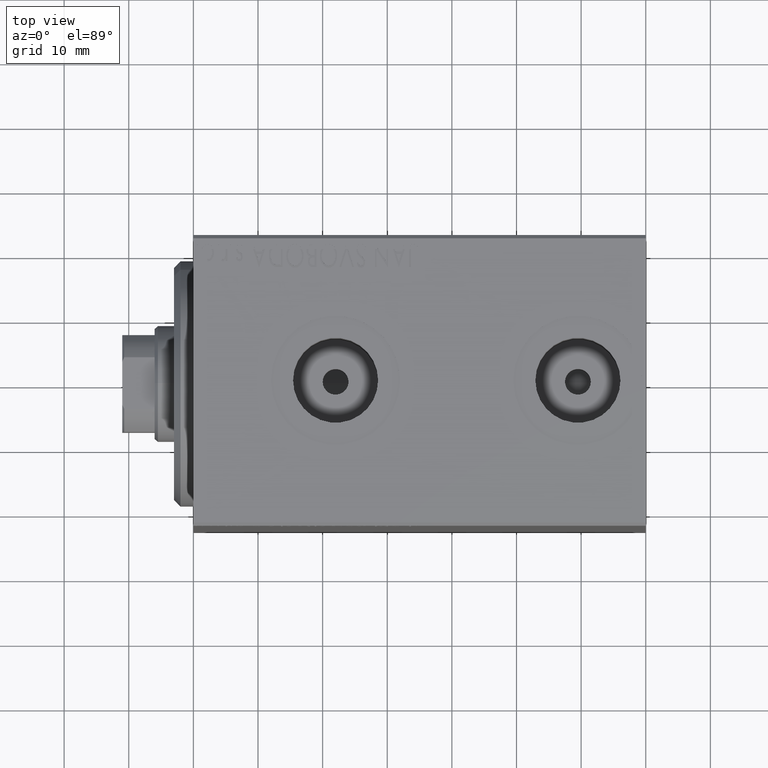
[diagram: clean part render]
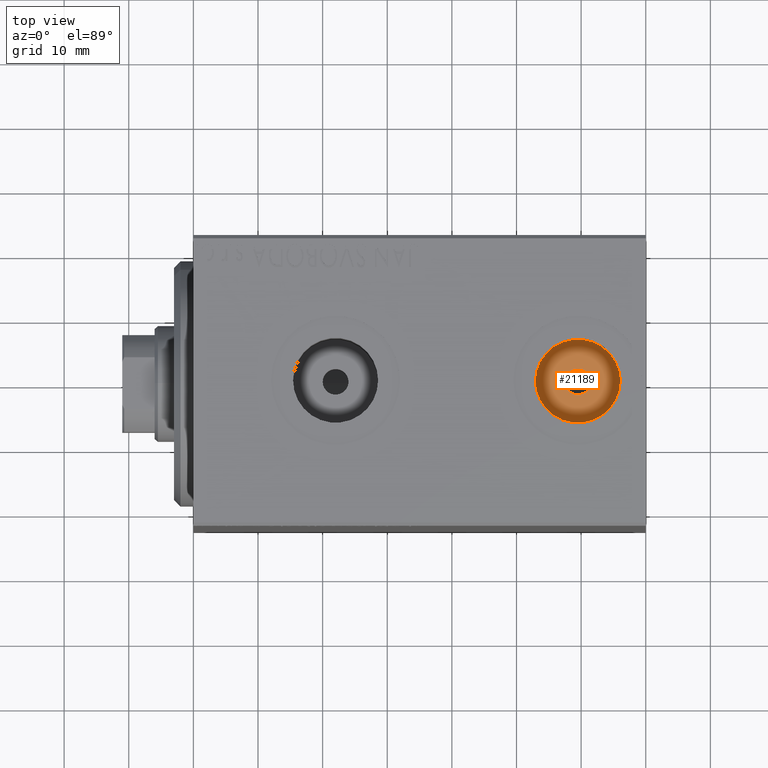
[diagram: same view with one face highlighted and labeled with its STEP entity id]
A machine part, top view. The second image highlights one B-rep face of the part: STEP entity #21189.
In plain terms, the highlighted planar face has unit normal (0, 0, 1).
Its self-contained STEP definition (entity closure, byte-faithful):
#146 = DIRECTION ( 'NONE',  ( 0.000000000000000000, 0.000000000000000000, 1.000000000000000000 ) ) ;
#376 = DIRECTION ( 'NONE',  ( 1.000000000000000000, 0.000000000000000000, 0.000000000000000000 ) ) ;
#595 = AXIS2_PLACEMENT_3D ( 'NONE', #43542, #23071, #2187 ) ;
#2187 = DIRECTION ( 'NONE',  ( 1.000000000000000000, 0.000000000000000000, -0.000000000000000000 ) ) ;
#2806 = ORIENTED_EDGE ( 'NONE', *, *, #40187, .T. ) ;
#2836 = PLANE ( 'NONE',  #595 ) ;
#3550 = AXIS2_PLACEMENT_3D ( 'NONE', #28281, #21170, #10945 ) ;
#7118 = ORIENTED_EDGE ( 'NONE', *, *, #10301, .F. ) ;
#7597 = CIRCLE ( 'NONE', #23219, 6.579999999999995630 ) ;
#10174 = AXIS2_PLACEMENT_3D ( 'NONE', #34536, #18261, #31625 ) ;
#10301 = EDGE_CURVE ( 'NONE', #19962, #28859, #35870, .T. ) ;
#10378 = CARTESIAN_POINT ( 'NONE',  ( 59.50000000000000711, -5.011423375044109822E-15, 19.23999999999999844 ) ) ;
#10473 = VERTEX_POINT ( 'NONE', #38828 ) ;
#10945 = DIRECTION ( 'NONE',  ( 1.000000000000000000, 0.000000000000000000, 0.000000000000000000 ) ) ;
#12790 = CARTESIAN_POINT ( 'NONE',  ( 57.50000000000000000, -4.766494015214639526E-15, 19.23999999999999844 ) ) ;
#13241 = CARTESIAN_POINT ( 'NONE',  ( 52.92000000000000881, -4.205605781205152358E-15, 19.23999999999999844 ) ) ;
#13313 = ORIENTED_EDGE ( 'NONE', *, *, #21388, .T. ) ;
#17716 = CARTESIAN_POINT ( 'NONE',  ( 59.50000000000000711, -5.011423375044109822E-15, 19.23999999999999844 ) ) ;
#18261 = DIRECTION ( 'NONE',  ( 0.000000000000000000, 0.000000000000000000, 1.000000000000000000 ) ) ;
#19962 = VERTEX_POINT ( 'NONE', #24102 ) ;
#20224 = AXIS2_PLACEMENT_3D ( 'NONE', #10378, #146, #376 ) ;
#20846 = CIRCLE ( 'NONE', #10174, 6.579999999999995630 ) ;
#21170 = DIRECTION ( 'NONE',  ( 0.000000000000000000, 0.000000000000000000, 1.000000000000000000 ) ) ;
#21189 = ADVANCED_FACE ( 'NONE', ( #29751, #26410 ), #2836, .T. ) ;
#21269 = DIRECTION ( 'NONE',  ( 1.000000000000000000, 0.000000000000000000, 0.000000000000000000 ) ) ;
#21295 = ORIENTED_EDGE ( 'NONE', *, *, #30245, .F. ) ;
#21388 = EDGE_CURVE ( 'NONE', #23830, #10473, #7597, .T. ) ;
#21544 = EDGE_LOOP ( 'NONE', ( #2806, #13313 ) ) ;
#22717 = CIRCLE ( 'NONE', #3550, 2.000000000000001776 ) ;
#23071 = DIRECTION ( 'NONE',  ( 0.000000000000000000, 0.000000000000000000, 1.000000000000000000 ) ) ;
#23219 = AXIS2_PLACEMENT_3D ( 'NONE', #17716, #24601, #21269 ) ;
#23830 = VERTEX_POINT ( 'NONE', #13241 ) ;
#24102 = CARTESIAN_POINT ( 'NONE',  ( 61.50000000000000711, -5.011423375044109822E-15, 19.23999999999999844 ) ) ;
#24601 = DIRECTION ( 'NONE',  ( 0.000000000000000000, 0.000000000000000000, 1.000000000000000000 ) ) ;
#26410 = FACE_OUTER_BOUND ( 'NONE', #21544, .T. ) ;
#28281 = CARTESIAN_POINT ( 'NONE',  ( 59.50000000000000711, -5.011423375044109822E-15, 19.23999999999999844 ) ) ;
#28859 = VERTEX_POINT ( 'NONE', #12790 ) ;
#29751 = FACE_BOUND ( 'NONE', #42817, .T. ) ;
#30245 = EDGE_CURVE ( 'NONE', #28859, #19962, #22717, .T. ) ;
#31625 = DIRECTION ( 'NONE',  ( 1.000000000000000000, 0.000000000000000000, 0.000000000000000000 ) ) ;
#34536 = CARTESIAN_POINT ( 'NONE',  ( 59.50000000000000711, -5.011423375044109822E-15, 19.23999999999999844 ) ) ;
#35870 = CIRCLE ( 'NONE', #20224, 2.000000000000001776 ) ;
#38828 = CARTESIAN_POINT ( 'NONE',  ( 66.07999999999999829, -5.011423375044109822E-15, 19.23999999999999844 ) ) ;
#40187 = EDGE_CURVE ( 'NONE', #10473, #23830, #20846, .T. ) ;
#42817 = EDGE_LOOP ( 'NONE', ( #7118, #21295 ) ) ;
#43542 = CARTESIAN_POINT ( 'NONE',  ( 59.50000000000000711, -5.011423375044109822E-15, 19.23999999999999844 ) ) ;